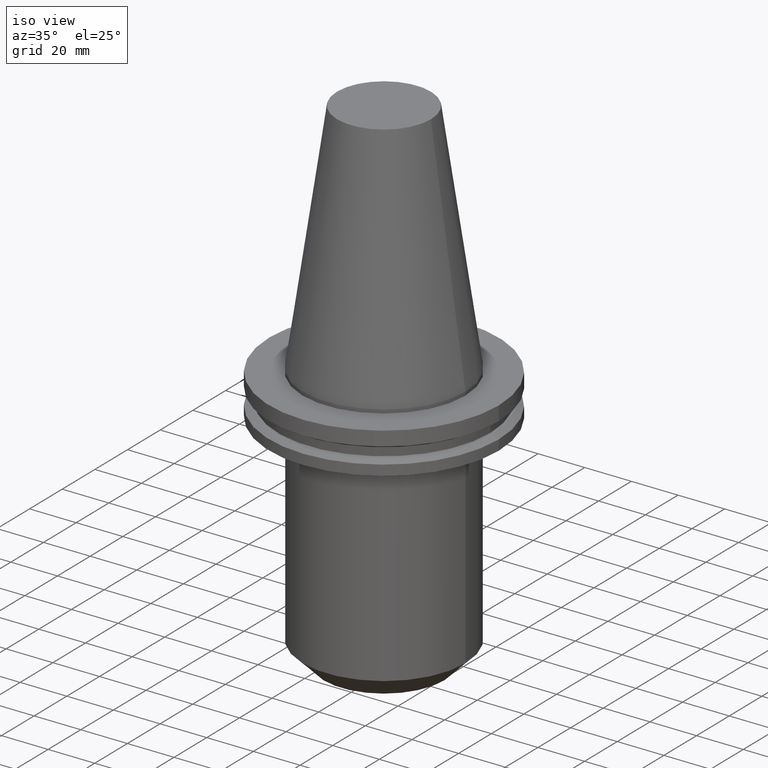
[diagram: clean part render]
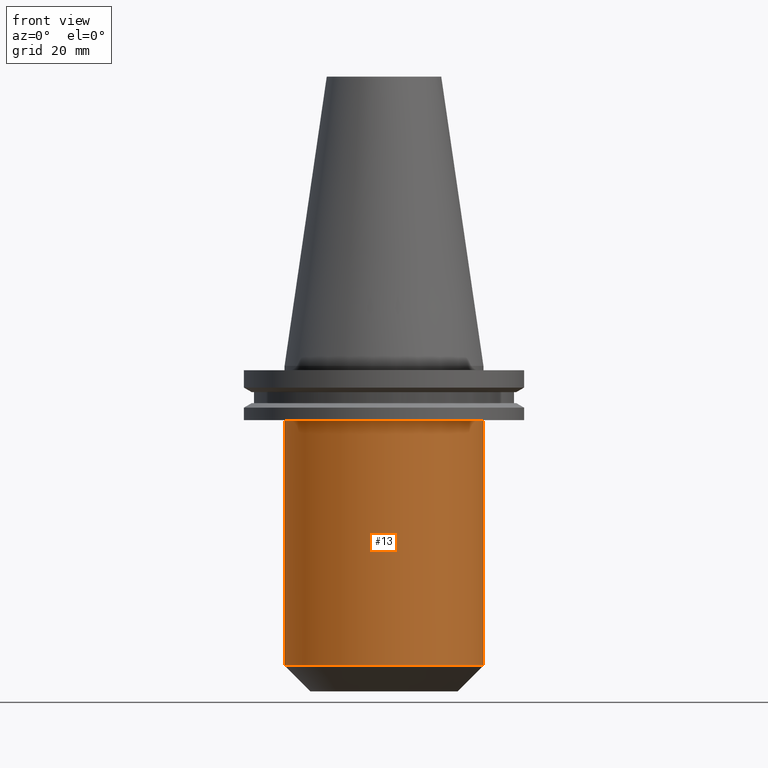
[diagram: tour spotlight — one face highlighted and labeled with its STEP entity id]
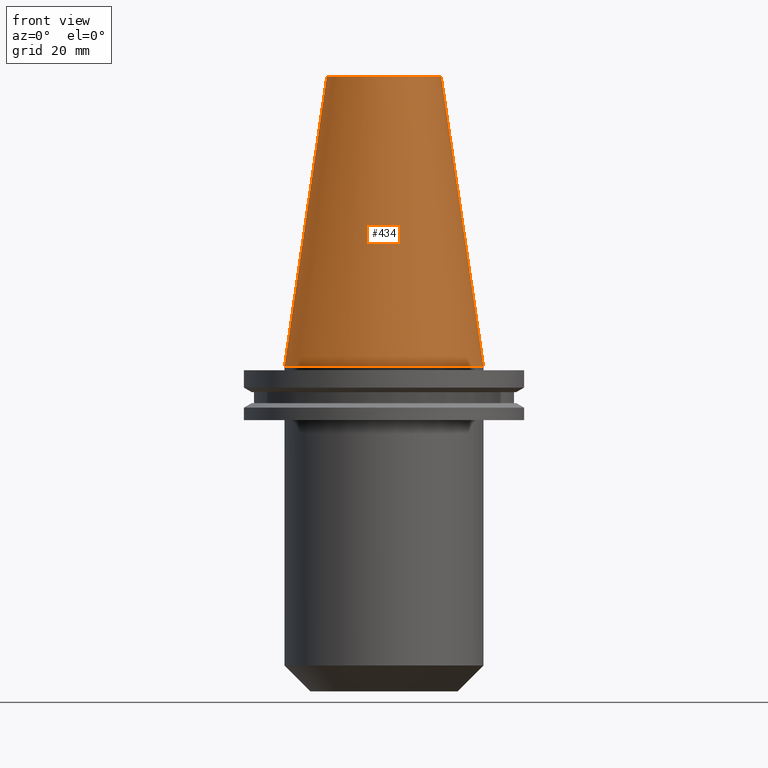
[diagram: tour spotlight — one face highlighted and labeled with its STEP entity id]
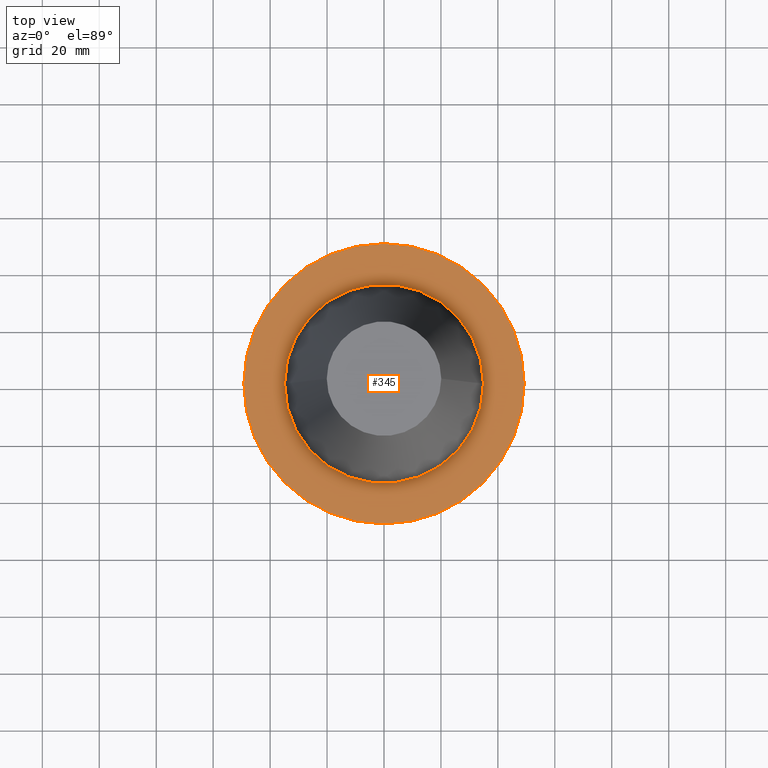
[diagram: tour spotlight — one face highlighted and labeled with its STEP entity id]
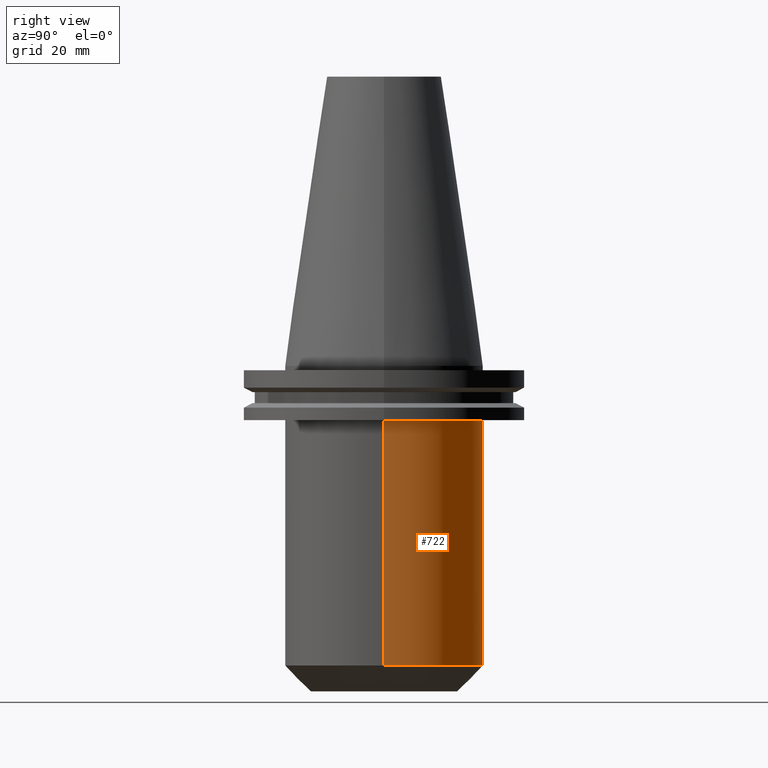
[diagram: tour spotlight — one face highlighted and labeled with its STEP entity id]
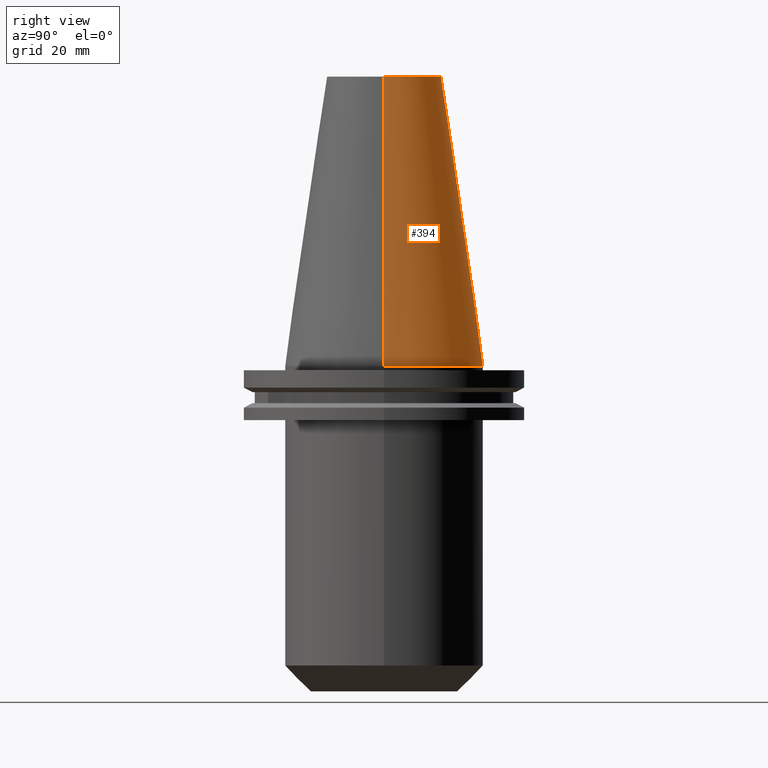
[diagram: tour spotlight — one face highlighted and labeled with its STEP entity id]
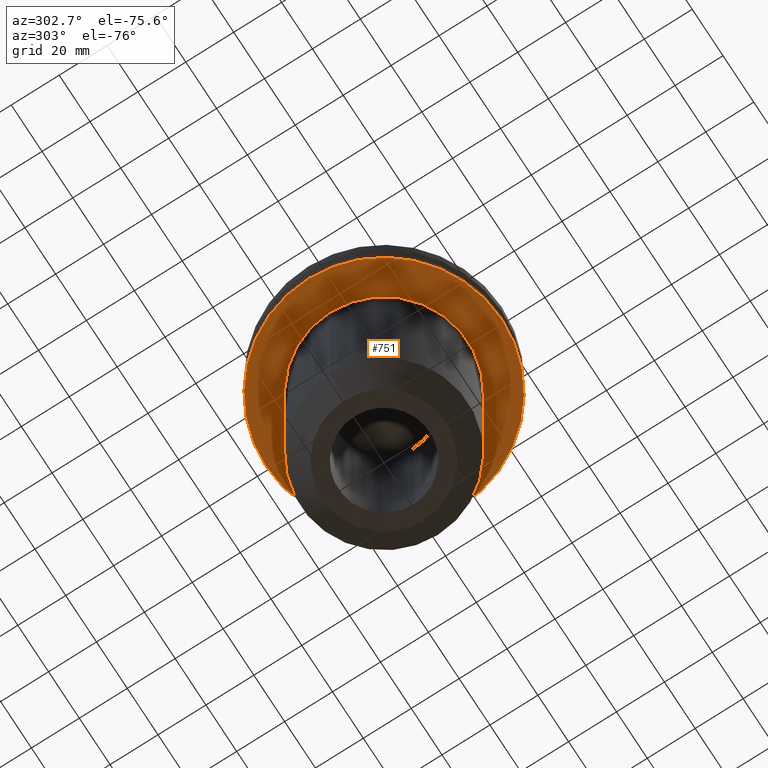
[diagram: tour spotlight — one face highlighted and labeled with its STEP entity id]
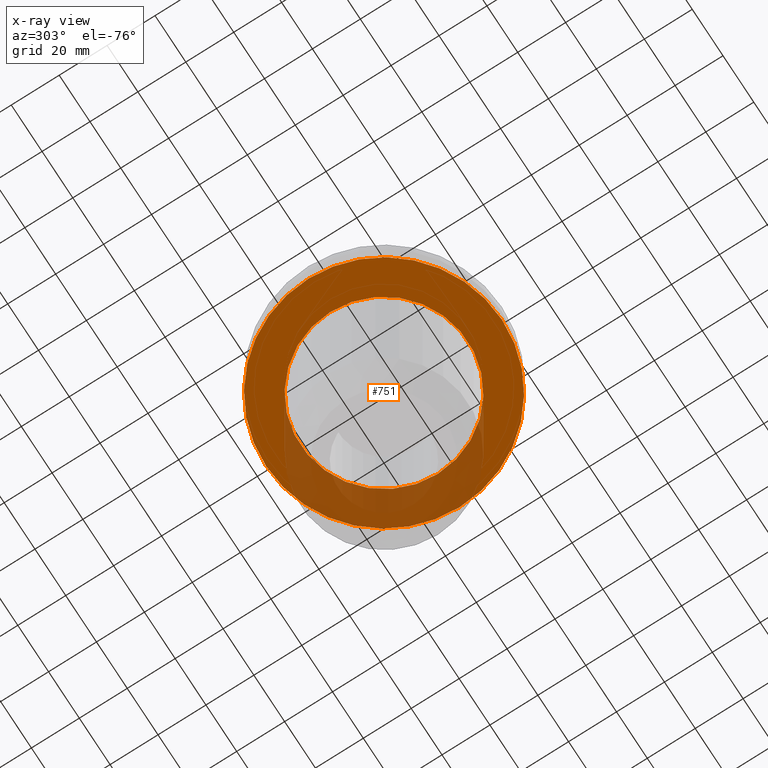
[diagram: x-ray of the same camera — body ghosted, this tour face saturated]
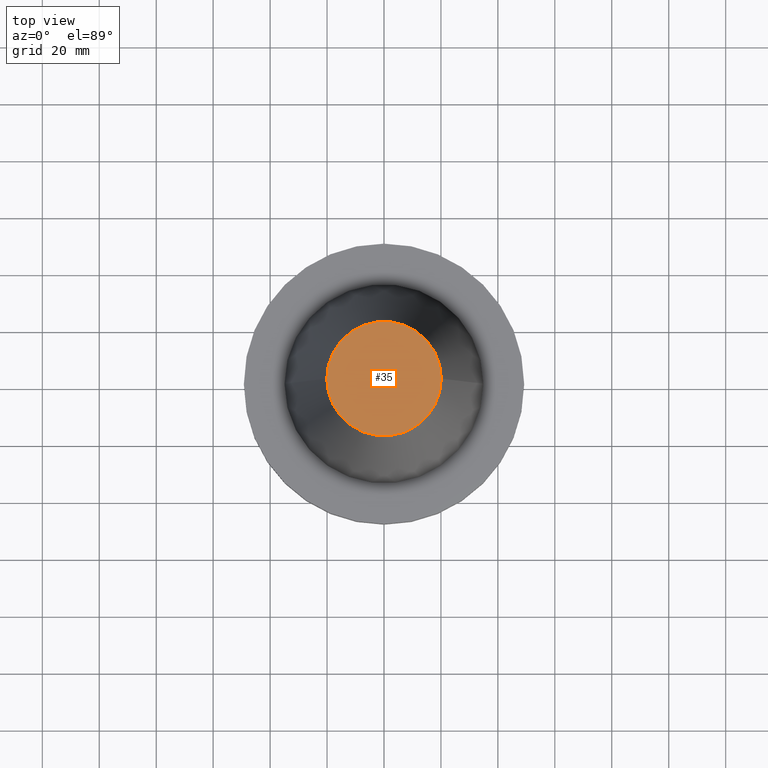
[diagram: tour spotlight — one face highlighted and labeled with its STEP entity id]
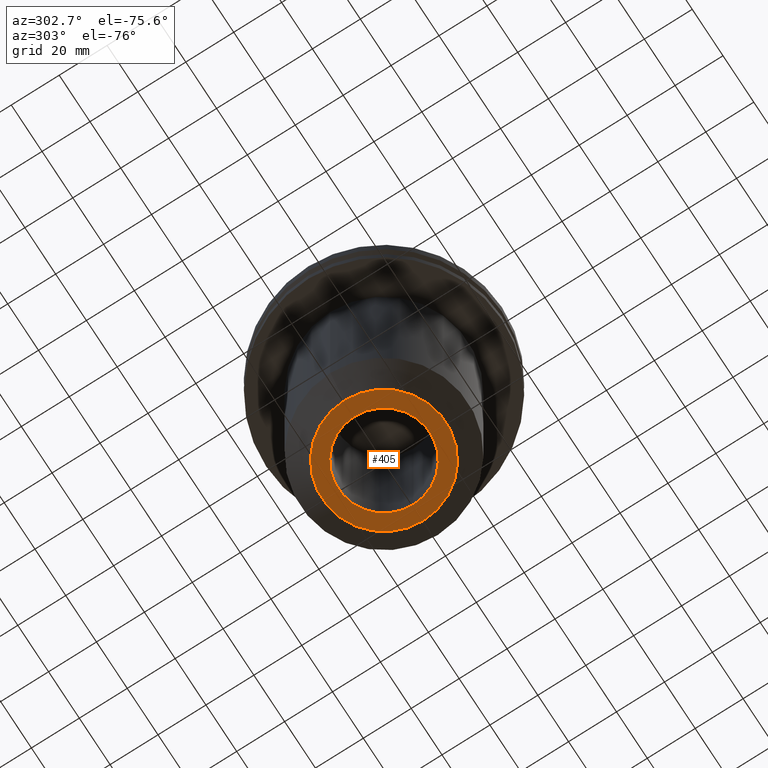
[diagram: tour spotlight — one face highlighted and labeled with its STEP entity id]
A machine part: a face-by-face anatomy tour. The part has 27 B-rep faces; the first image is the clean iso view, then the 8 largest visible faces are spotlighted one at a time (largest first), each with its STEP entity span.

Face 1 — front view, entity #13. In plain terms, the highlighted cylindrical surface (partial cylindrical patch) has radius 34.925 mm, axis along (-0, -0, 1).
Definition (entity closure, byte-faithful):
#13 = ADVANCED_FACE ( 'NONE', ( #207 ), #146, .T. ) ;
#54 = CARTESIAN_POINT ( 'NONE',  ( 34.92499999999999716, 0.000000000000000000, -19.04999999999999716 ) ) ;
#84 = ORIENTED_EDGE ( 'NONE', *, *, #343, .T. ) ;
#92 = DIRECTION ( 'NONE',  ( -0.000000000000000000, -0.000000000000000000, 1.000000000000000000 ) ) ;
#98 = ORIENTED_EDGE ( 'NONE', *, *, #572, .F. ) ;
#99 = LINE ( 'NONE', #396, #323 ) ;
#138 = ORIENTED_EDGE ( 'NONE', *, *, #267, .T. ) ;
#146 = CYLINDRICAL_SURFACE ( 'NONE', #496, 34.92499999999999716 ) ;
#156 = DIRECTION ( 'NONE',  ( -0.000000000000000000, -0.000000000000000000, 1.000000000000000000 ) ) ;
#172 = AXIS2_PLACEMENT_3D ( 'NONE', #677, #92, #696 ) ;
#207 = FACE_OUTER_BOUND ( 'NONE', #726, .T. ) ;
#231 = DIRECTION ( 'NONE',  ( 1.000000000000000000, 0.000000000000000000, 0.000000000000000000 ) ) ;
#262 = VERTEX_POINT ( 'NONE', #54 ) ;
#267 = EDGE_CURVE ( 'NONE', #542, #391, #759, .T. ) ;
#323 = VECTOR ( 'NONE', #156, 1000.000000000000000 ) ;
#343 = EDGE_CURVE ( 'NONE', #391, #262, #479, .T. ) ;
#356 = CARTESIAN_POINT ( 'NONE',  ( 34.92499999999999716, 0.000000000000000000, 101.5999999999999943 ) ) ;
#361 = CARTESIAN_POINT ( 'NONE',  ( 0.000000000000000000, 0.000000000000000000, -105.2000000000000028 ) ) ;
#376 = DIRECTION ( 'NONE',  ( 1.000000000000000000, 0.000000000000000000, 0.000000000000000000 ) ) ;
#391 = VERTEX_POINT ( 'NONE', #526 ) ;
#396 = CARTESIAN_POINT ( 'NONE',  ( -34.92499999999999716, 4.277078946022130887E-15, 101.5999999999999943 ) ) ;
#417 = DIRECTION ( 'NONE',  ( -0.000000000000000000, -0.000000000000000000, 1.000000000000000000 ) ) ;
#422 = VERTEX_POINT ( 'NONE', #485 ) ;
#441 = AXIS2_PLACEMENT_3D ( 'NONE', #361, #417, #231 ) ;
#479 = LINE ( 'NONE', #356, #669 ) ;
#485 = CARTESIAN_POINT ( 'NONE',  ( -34.92499999999999716, 4.277078946022130887E-15, -19.04999999999999716 ) ) ;
#496 = AXIS2_PLACEMENT_3D ( 'NONE', #665, #503, #376 ) ;
#503 = DIRECTION ( 'NONE',  ( -0.000000000000000000, -0.000000000000000000, 1.000000000000000000 ) ) ;
#525 = EDGE_CURVE ( 'NONE', #422, #262, #577, .T. ) ;
#526 = CARTESIAN_POINT ( 'NONE',  ( 34.92499999999998295, 0.000000000000000000, -105.2000000000000028 ) ) ;
#542 = VERTEX_POINT ( 'NONE', #687 ) ;
#572 = EDGE_CURVE ( 'NONE', #542, #422, #99, .T. ) ;
#577 = CIRCLE ( 'NONE', #172, 34.92499999999999716 ) ;
#595 = DIRECTION ( 'NONE',  ( -0.000000000000000000, -0.000000000000000000, 1.000000000000000000 ) ) ;
#665 = CARTESIAN_POINT ( 'NONE',  ( 0.000000000000000000, 0.000000000000000000, 101.5999999999999943 ) ) ;
#669 = VECTOR ( 'NONE', #595, 1000.000000000000000 ) ;
#672 = ORIENTED_EDGE ( 'NONE', *, *, #525, .F. ) ;
#677 = CARTESIAN_POINT ( 'NONE',  ( 0.000000000000000000, 0.000000000000000000, -19.04999999999999716 ) ) ;
#687 = CARTESIAN_POINT ( 'NONE',  ( -34.92499999999998295, 4.277078946022130098E-15, -105.2000000000000028 ) ) ;
#696 = DIRECTION ( 'NONE',  ( 1.000000000000000000, 0.000000000000000000, 0.000000000000000000 ) ) ;
#726 = EDGE_LOOP ( 'NONE', ( #98, #138, #84, #672 ) ) ;
#759 = CIRCLE ( 'NONE', #441, 34.92499999999998295 ) ;

Face 2 — front view, entity #434. In plain terms, the highlighted conical surface has half-angle 8.297 deg.
Definition (entity closure, byte-faithful):
#1 = CARTESIAN_POINT ( 'NONE',  ( 0.000000000000000000, 0.000000000000000000, 0.000000000000000000 ) ) ;
#52 = VECTOR ( 'NONE', #455, 999.9999999999998863 ) ;
#55 = VERTEX_POINT ( 'NONE', #380 ) ;
#62 = ORIENTED_EDGE ( 'NONE', *, *, #709, .F. ) ;
#72 = CARTESIAN_POINT ( 'NONE',  ( 0.000000000000000000, 0.000000000000000000, 0.000000000000000000 ) ) ;
#124 = DIRECTION ( 'NONE',  ( 1.000000000000000000, 0.000000000000000000, 0.000000000000000000 ) ) ;
#148 = AXIS2_PLACEMENT_3D ( 'NONE', #72, #554, #741 ) ;
#164 = CARTESIAN_POINT ( 'NONE',  ( 34.92499999999999005, 4.277078946022130098E-15, 0.000000000000000000 ) ) ;
#197 = CIRCLE ( 'NONE', #543, 20.10819343178871321 ) ;
#224 = VECTOR ( 'NONE', #260, 999.9999999999998863 ) ;
#260 = DIRECTION ( 'NONE',  ( -0.1443082272672999988, 0.000000000000000000, -0.9895327864921755756 ) ) ;
#322 = LINE ( 'NONE', #436, #224 ) ;
#355 = EDGE_CURVE ( 'NONE', #774, #563, #743, .T. ) ;
#375 = FACE_OUTER_BOUND ( 'NONE', #626, .T. ) ;
#380 = CARTESIAN_POINT ( 'NONE',  ( -20.10819343178871321, 0.000000000000000000, 101.5999999999999801 ) ) ;
#418 = VERTEX_POINT ( 'NONE', #673 ) ;
#428 = DIRECTION ( 'NONE',  ( -0.000000000000000000, -0.000000000000000000, 1.000000000000000000 ) ) ;
#434 = ADVANCED_FACE ( 'NONE', ( #375 ), #603, .T. ) ;
#436 = CARTESIAN_POINT ( 'NONE',  ( -34.92499999999999005, 0.000000000000000000, 0.000000000000000000 ) ) ;
#455 = DIRECTION ( 'NONE',  ( 0.1443082272672999988, 1.767266086135277066E-17, -0.9895327864921755756 ) ) ;
#477 = ORIENTED_EDGE ( 'NONE', *, *, #494, .F. ) ;
#484 = EDGE_CURVE ( 'NONE', #55, #774, #322, .T. ) ;
#489 = ORIENTED_EDGE ( 'NONE', *, *, #484, .T. ) ;
#494 = EDGE_CURVE ( 'NONE', #55, #418, #197, .T. ) ;
#515 = LINE ( 'NONE', #757, #52 ) ;
#540 = CARTESIAN_POINT ( 'NONE',  ( 0.000000000000000000, 0.000000000000000000, 101.5999999999999801 ) ) ;
#543 = AXIS2_PLACEMENT_3D ( 'NONE', #540, #428, #668 ) ;
#554 = DIRECTION ( 'NONE',  ( 0.000000000000000000, 0.000000000000000000, -1.000000000000000000 ) ) ;
#563 = VERTEX_POINT ( 'NONE', #164 ) ;
#603 = CONICAL_SURFACE ( 'NONE', #148, 34.92499999999999005, 0.1448138465474119452 ) ;
#626 = EDGE_LOOP ( 'NONE', ( #62, #477, #489, #648 ) ) ;
#648 = ORIENTED_EDGE ( 'NONE', *, *, #355, .T. ) ;
#668 = DIRECTION ( 'NONE',  ( 1.000000000000000000, 0.000000000000000000, 0.000000000000000000 ) ) ;
#673 = CARTESIAN_POINT ( 'NONE',  ( 20.10819343178871321, 3.369811209154858606E-15, 101.5999999999999801 ) ) ;
#709 = EDGE_CURVE ( 'NONE', #418, #563, #515, .T. ) ;
#741 = DIRECTION ( 'NONE',  ( -1.000000000000000000, 0.000000000000000000, 0.000000000000000000 ) ) ;
#743 = CIRCLE ( 'NONE', #756, 34.92499999999999005 ) ;
#756 = AXIS2_PLACEMENT_3D ( 'NONE', #1, #766, #124 ) ;
#757 = CARTESIAN_POINT ( 'NONE',  ( 34.92499999999999005, 4.277078946022130098E-15, 0.000000000000000000 ) ) ;
#766 = DIRECTION ( 'NONE',  ( -0.000000000000000000, -0.000000000000000000, 1.000000000000000000 ) ) ;
#774 = VERTEX_POINT ( 'NONE', #775 ) ;
#775 = CARTESIAN_POINT ( 'NONE',  ( -34.92499999999999005, 0.000000000000000000, 0.000000000000000000 ) ) ;

Face 3 — top view, entity #345. In plain terms, the highlighted planar face has unit normal (0, 0, -1).
Definition (entity closure, byte-faithful):
#15 = EDGE_LOOP ( 'NONE', ( #613, #34 ) ) ;
#34 = ORIENTED_EDGE ( 'NONE', *, *, #48, .T. ) ;
#36 = CARTESIAN_POINT ( 'NONE',  ( 34.92499999999999005, 0.000000000000000000, -1.499999999999987566 ) ) ;
#38 = CIRCLE ( 'NONE', #592, 34.92499999999999005 ) ;
#44 = DIRECTION ( 'NONE',  ( -0.000000000000000000, -0.000000000000000000, 1.000000000000000000 ) ) ;
#45 = AXIS2_PLACEMENT_3D ( 'NONE', #352, #298, #349 ) ;
#48 = EDGE_CURVE ( 'NONE', #362, #555, #697, .T. ) ;
#114 = EDGE_CURVE ( 'NONE', #433, #639, #38, .T. ) ;
#133 = CARTESIAN_POINT ( 'NONE',  ( 0.000000000000000000, 0.000000000000000000, -1.499999999999987566 ) ) ;
#140 = CARTESIAN_POINT ( 'NONE',  ( -34.92499999999999005, 4.277078946022130098E-15, -1.499999999999987566 ) ) ;
#168 = AXIS2_PLACEMENT_3D ( 'NONE', #571, #44, #279 ) ;
#193 = EDGE_CURVE ( 'NONE', #639, #433, #588, .T. ) ;
#215 = CARTESIAN_POINT ( 'NONE',  ( 0.000000000000000000, 0.000000000000000000, -1.499999999999987566 ) ) ;
#279 = DIRECTION ( 'NONE',  ( 1.000000000000000000, 0.000000000000000000, 0.000000000000000000 ) ) ;
#290 = CARTESIAN_POINT ( 'NONE',  ( -49.21499999999999631, 6.027099222003697826E-15, -1.499999999999987566 ) ) ;
#298 = DIRECTION ( 'NONE',  ( 0.000000000000000000, 0.000000000000000000, -1.000000000000000000 ) ) ;
#345 = ADVANCED_FACE ( 'NONE', ( #410, #583 ), #523, .F. ) ;
#349 = DIRECTION ( 'NONE',  ( -1.000000000000000000, 0.000000000000000000, -0.000000000000000000 ) ) ;
#352 = CARTESIAN_POINT ( 'NONE',  ( 0.000000000000000000, 49.21499999999999631, -1.499999999999992895 ) ) ;
#362 = VERTEX_POINT ( 'NONE', #290 ) ;
#404 = CARTESIAN_POINT ( 'NONE',  ( 0.000000000000000000, 0.000000000000000000, -1.499999999999987566 ) ) ;
#410 = FACE_BOUND ( 'NONE', #535, .T. ) ;
#414 = ORIENTED_EDGE ( 'NONE', *, *, #114, .F. ) ;
#433 = VERTEX_POINT ( 'NONE', #140 ) ;
#437 = DIRECTION ( 'NONE',  ( -0.000000000000000000, -0.000000000000000000, 1.000000000000000000 ) ) ;
#445 = AXIS2_PLACEMENT_3D ( 'NONE', #215, #761, #570 ) ;
#512 = DIRECTION ( 'NONE',  ( -0.000000000000000000, -0.000000000000000000, 1.000000000000000000 ) ) ;
#523 = PLANE ( 'NONE',  #45 ) ;
#532 = AXIS2_PLACEMENT_3D ( 'NONE', #133, #437, #678 ) ;
#535 = EDGE_LOOP ( 'NONE', ( #649, #414 ) ) ;
#555 = VERTEX_POINT ( 'NONE', #744 ) ;
#570 = DIRECTION ( 'NONE',  ( 1.000000000000000000, 0.000000000000000000, 0.000000000000000000 ) ) ;
#571 = CARTESIAN_POINT ( 'NONE',  ( 0.000000000000000000, 0.000000000000000000, -1.499999999999987566 ) ) ;
#583 = FACE_OUTER_BOUND ( 'NONE', #15, .T. ) ;
#588 = CIRCLE ( 'NONE', #168, 34.92499999999999005 ) ;
#592 = AXIS2_PLACEMENT_3D ( 'NONE', #404, #512, #688 ) ;
#613 = ORIENTED_EDGE ( 'NONE', *, *, #682, .T. ) ;
#639 = VERTEX_POINT ( 'NONE', #36 ) ;
#649 = ORIENTED_EDGE ( 'NONE', *, *, #193, .F. ) ;
#678 = DIRECTION ( 'NONE',  ( 1.000000000000000000, 0.000000000000000000, 0.000000000000000000 ) ) ;
#682 = EDGE_CURVE ( 'NONE', #555, #362, #720, .T. ) ;
#688 = DIRECTION ( 'NONE',  ( 1.000000000000000000, 0.000000000000000000, 0.000000000000000000 ) ) ;
#697 = CIRCLE ( 'NONE', #532, 49.21499999999999631 ) ;
#720 = CIRCLE ( 'NONE', #445, 49.21499999999999631 ) ;
#744 = CARTESIAN_POINT ( 'NONE',  ( 49.21499999999999631, 0.000000000000000000, -1.499999999999987566 ) ) ;
#761 = DIRECTION ( 'NONE',  ( -0.000000000000000000, -0.000000000000000000, 1.000000000000000000 ) ) ;

Face 4 — right view, entity #722. In plain terms, the highlighted cylindrical surface (partial cylindrical patch) has radius 34.925 mm, axis along (-0, -0, 1).
Definition (entity closure, byte-faithful):
#7 = EDGE_CURVE ( 'NONE', #391, #542, #632, .T. ) ;
#33 = DIRECTION ( 'NONE',  ( 1.000000000000000000, 0.000000000000000000, 0.000000000000000000 ) ) ;
#39 = AXIS2_PLACEMENT_3D ( 'NONE', #524, #465, #701 ) ;
#54 = CARTESIAN_POINT ( 'NONE',  ( 34.92499999999999716, 0.000000000000000000, -19.04999999999999716 ) ) ;
#99 = LINE ( 'NONE', #396, #323 ) ;
#100 = DIRECTION ( 'NONE',  ( 1.000000000000000000, 0.000000000000000000, 0.000000000000000000 ) ) ;
#113 = ORIENTED_EDGE ( 'NONE', *, *, #7, .T. ) ;
#131 = EDGE_CURVE ( 'NONE', #262, #422, #731, .T. ) ;
#156 = DIRECTION ( 'NONE',  ( -0.000000000000000000, -0.000000000000000000, 1.000000000000000000 ) ) ;
#171 = CYLINDRICAL_SURFACE ( 'NONE', #39, 34.92499999999999716 ) ;
#199 = ORIENTED_EDGE ( 'NONE', *, *, #131, .F. ) ;
#208 = ORIENTED_EDGE ( 'NONE', *, *, #343, .F. ) ;
#262 = VERTEX_POINT ( 'NONE', #54 ) ;
#323 = VECTOR ( 'NONE', #156, 1000.000000000000000 ) ;
#332 = CARTESIAN_POINT ( 'NONE',  ( 0.000000000000000000, 0.000000000000000000, -19.04999999999999716 ) ) ;
#343 = EDGE_CURVE ( 'NONE', #391, #262, #479, .T. ) ;
#348 = FACE_OUTER_BOUND ( 'NONE', #377, .T. ) ;
#356 = CARTESIAN_POINT ( 'NONE',  ( 34.92499999999999716, 0.000000000000000000, 101.5999999999999943 ) ) ;
#377 = EDGE_LOOP ( 'NONE', ( #113, #725, #199, #208 ) ) ;
#391 = VERTEX_POINT ( 'NONE', #526 ) ;
#396 = CARTESIAN_POINT ( 'NONE',  ( -34.92499999999999716, 4.277078946022130887E-15, 101.5999999999999943 ) ) ;
#422 = VERTEX_POINT ( 'NONE', #485 ) ;
#465 = DIRECTION ( 'NONE',  ( -0.000000000000000000, -0.000000000000000000, 1.000000000000000000 ) ) ;
#479 = LINE ( 'NONE', #356, #669 ) ;
#481 = AXIS2_PLACEMENT_3D ( 'NONE', #332, #750, #100 ) ;
#485 = CARTESIAN_POINT ( 'NONE',  ( -34.92499999999999716, 4.277078946022130887E-15, -19.04999999999999716 ) ) ;
#498 = DIRECTION ( 'NONE',  ( -0.000000000000000000, -0.000000000000000000, 1.000000000000000000 ) ) ;
#524 = CARTESIAN_POINT ( 'NONE',  ( 0.000000000000000000, 0.000000000000000000, 101.5999999999999943 ) ) ;
#526 = CARTESIAN_POINT ( 'NONE',  ( 34.92499999999998295, 0.000000000000000000, -105.2000000000000028 ) ) ;
#542 = VERTEX_POINT ( 'NONE', #687 ) ;
#572 = EDGE_CURVE ( 'NONE', #542, #422, #99, .T. ) ;
#582 = AXIS2_PLACEMENT_3D ( 'NONE', #675, #498, #33 ) ;
#595 = DIRECTION ( 'NONE',  ( -0.000000000000000000, -0.000000000000000000, 1.000000000000000000 ) ) ;
#632 = CIRCLE ( 'NONE', #582, 34.92499999999998295 ) ;
#669 = VECTOR ( 'NONE', #595, 1000.000000000000000 ) ;
#675 = CARTESIAN_POINT ( 'NONE',  ( 0.000000000000000000, 0.000000000000000000, -105.2000000000000028 ) ) ;
#687 = CARTESIAN_POINT ( 'NONE',  ( -34.92499999999998295, 4.277078946022130098E-15, -105.2000000000000028 ) ) ;
#701 = DIRECTION ( 'NONE',  ( 1.000000000000000000, 0.000000000000000000, 0.000000000000000000 ) ) ;
#722 = ADVANCED_FACE ( 'NONE', ( #348 ), #171, .T. ) ;
#725 = ORIENTED_EDGE ( 'NONE', *, *, #572, .T. ) ;
#731 = CIRCLE ( 'NONE', #481, 34.92499999999999716 ) ;
#750 = DIRECTION ( 'NONE',  ( -0.000000000000000000, -0.000000000000000000, 1.000000000000000000 ) ) ;

Face 5 — right view, entity #394. In plain terms, the highlighted conical surface has half-angle 8.297 deg.
Definition (entity closure, byte-faithful):
#52 = VECTOR ( 'NONE', #455, 999.9999999999998863 ) ;
#53 = DIRECTION ( 'NONE',  ( -0.000000000000000000, -0.000000000000000000, 1.000000000000000000 ) ) ;
#55 = VERTEX_POINT ( 'NONE', #380 ) ;
#66 = CARTESIAN_POINT ( 'NONE',  ( 0.000000000000000000, 0.000000000000000000, 0.000000000000000000 ) ) ;
#80 = ORIENTED_EDGE ( 'NONE', *, *, #253, .T. ) ;
#103 = CARTESIAN_POINT ( 'NONE',  ( 0.000000000000000000, 0.000000000000000000, 101.5999999999999801 ) ) ;
#116 = DIRECTION ( 'NONE',  ( 1.000000000000000000, 0.000000000000000000, 0.000000000000000000 ) ) ;
#127 = EDGE_CURVE ( 'NONE', #418, #55, #567, .T. ) ;
#164 = CARTESIAN_POINT ( 'NONE',  ( 34.92499999999999005, 4.277078946022130098E-15, 0.000000000000000000 ) ) ;
#222 = CIRCLE ( 'NONE', #305, 34.92499999999999005 ) ;
#224 = VECTOR ( 'NONE', #260, 999.9999999999998863 ) ;
#243 = AXIS2_PLACEMENT_3D ( 'NONE', #558, #431, #487 ) ;
#253 = EDGE_CURVE ( 'NONE', #563, #774, #222, .T. ) ;
#255 = EDGE_LOOP ( 'NONE', ( #326, #658, #80, #730 ) ) ;
#260 = DIRECTION ( 'NONE',  ( -0.1443082272672999988, 0.000000000000000000, -0.9895327864921755756 ) ) ;
#305 = AXIS2_PLACEMENT_3D ( 'NONE', #66, #646, #116 ) ;
#322 = LINE ( 'NONE', #436, #224 ) ;
#326 = ORIENTED_EDGE ( 'NONE', *, *, #127, .F. ) ;
#380 = CARTESIAN_POINT ( 'NONE',  ( -20.10819343178871321, 0.000000000000000000, 101.5999999999999801 ) ) ;
#394 = ADVANCED_FACE ( 'NONE', ( #768 ), #712, .T. ) ;
#418 = VERTEX_POINT ( 'NONE', #673 ) ;
#431 = DIRECTION ( 'NONE',  ( 0.000000000000000000, 0.000000000000000000, -1.000000000000000000 ) ) ;
#436 = CARTESIAN_POINT ( 'NONE',  ( -34.92499999999999005, 0.000000000000000000, 0.000000000000000000 ) ) ;
#455 = DIRECTION ( 'NONE',  ( 0.1443082272672999988, 1.767266086135277066E-17, -0.9895327864921755756 ) ) ;
#484 = EDGE_CURVE ( 'NONE', #55, #774, #322, .T. ) ;
#487 = DIRECTION ( 'NONE',  ( -1.000000000000000000, 0.000000000000000000, 0.000000000000000000 ) ) ;
#515 = LINE ( 'NONE', #757, #52 ) ;
#558 = CARTESIAN_POINT ( 'NONE',  ( 0.000000000000000000, 0.000000000000000000, 0.000000000000000000 ) ) ;
#563 = VERTEX_POINT ( 'NONE', #164 ) ;
#567 = CIRCLE ( 'NONE', #760, 20.10819343178871321 ) ;
#625 = DIRECTION ( 'NONE',  ( 1.000000000000000000, 0.000000000000000000, 0.000000000000000000 ) ) ;
#646 = DIRECTION ( 'NONE',  ( -0.000000000000000000, -0.000000000000000000, 1.000000000000000000 ) ) ;
#658 = ORIENTED_EDGE ( 'NONE', *, *, #709, .T. ) ;
#673 = CARTESIAN_POINT ( 'NONE',  ( 20.10819343178871321, 3.369811209154858606E-15, 101.5999999999999801 ) ) ;
#709 = EDGE_CURVE ( 'NONE', #418, #563, #515, .T. ) ;
#712 = CONICAL_SURFACE ( 'NONE', #243, 34.92499999999999005, 0.1448138465474119452 ) ;
#730 = ORIENTED_EDGE ( 'NONE', *, *, #484, .F. ) ;
#757 = CARTESIAN_POINT ( 'NONE',  ( 34.92499999999999005, 4.277078946022130098E-15, 0.000000000000000000 ) ) ;
#760 = AXIS2_PLACEMENT_3D ( 'NONE', #103, #53, #625 ) ;
#768 = FACE_OUTER_BOUND ( 'NONE', #255, .T. ) ;
#774 = VERTEX_POINT ( 'NONE', #775 ) ;
#775 = CARTESIAN_POINT ( 'NONE',  ( -34.92499999999999005, 0.000000000000000000, 0.000000000000000000 ) ) ;

Face 6 — auxiliary view, entity #751. An x-ray twin of the same camera follows (body ghosted, this face saturated) — the face is partly hidden behind the body. In plain terms, the highlighted planar face has unit normal (0, -0, 1).
Definition (entity closure, byte-faithful):
#5 = DIRECTION ( 'NONE',  ( 1.000000000000000000, 0.000000000000000000, 0.000000000000000000 ) ) ;
#6 = ORIENTED_EDGE ( 'NONE', *, *, #525, .T. ) ;
#51 = CARTESIAN_POINT ( 'NONE',  ( 0.000000000000000000, 49.21499999999998920, -19.04999999999999716 ) ) ;
#54 = CARTESIAN_POINT ( 'NONE',  ( 34.92499999999999716, 0.000000000000000000, -19.04999999999999716 ) ) ;
#60 = DIRECTION ( 'NONE',  ( -0.000000000000000000, -0.000000000000000000, 1.000000000000000000 ) ) ;
#75 = AXIS2_PLACEMENT_3D ( 'NONE', #51, #475, #533 ) ;
#81 = CARTESIAN_POINT ( 'NONE',  ( -49.21499999999998920, 6.027099222003697037E-15, -19.04999999999999716 ) ) ;
#92 = DIRECTION ( 'NONE',  ( -0.000000000000000000, -0.000000000000000000, 1.000000000000000000 ) ) ;
#100 = DIRECTION ( 'NONE',  ( 1.000000000000000000, 0.000000000000000000, 0.000000000000000000 ) ) ;
#125 = ORIENTED_EDGE ( 'NONE', *, *, #131, .T. ) ;
#131 = EDGE_CURVE ( 'NONE', #262, #422, #731, .T. ) ;
#167 = DIRECTION ( 'NONE',  ( -0.000000000000000000, -0.000000000000000000, 1.000000000000000000 ) ) ;
#172 = AXIS2_PLACEMENT_3D ( 'NONE', #677, #92, #696 ) ;
#177 = EDGE_LOOP ( 'NONE', ( #125, #6 ) ) ;
#229 = AXIS2_PLACEMENT_3D ( 'NONE', #421, #60, #5 ) ;
#242 = FACE_BOUND ( 'NONE', #177, .T. ) ;
#257 = CARTESIAN_POINT ( 'NONE',  ( 49.21499999999998920, 0.000000000000000000, -19.04999999999999716 ) ) ;
#261 = EDGE_LOOP ( 'NONE', ( #499, #353 ) ) ;
#262 = VERTEX_POINT ( 'NONE', #54 ) ;
#271 = CIRCLE ( 'NONE', #704, 49.21499999999998920 ) ;
#293 = CARTESIAN_POINT ( 'NONE',  ( 0.000000000000000000, 0.000000000000000000, -19.04999999999999716 ) ) ;
#325 = EDGE_CURVE ( 'NONE', #440, #509, #271, .T. ) ;
#332 = CARTESIAN_POINT ( 'NONE',  ( 0.000000000000000000, 0.000000000000000000, -19.04999999999999716 ) ) ;
#353 = ORIENTED_EDGE ( 'NONE', *, *, #366, .F. ) ;
#366 = EDGE_CURVE ( 'NONE', #509, #440, #491, .T. ) ;
#409 = FACE_OUTER_BOUND ( 'NONE', #261, .T. ) ;
#421 = CARTESIAN_POINT ( 'NONE',  ( 0.000000000000000000, 0.000000000000000000, -19.04999999999999716 ) ) ;
#422 = VERTEX_POINT ( 'NONE', #485 ) ;
#440 = VERTEX_POINT ( 'NONE', #257 ) ;
#472 = DIRECTION ( 'NONE',  ( 1.000000000000000000, 0.000000000000000000, 0.000000000000000000 ) ) ;
#475 = DIRECTION ( 'NONE',  ( 0.000000000000000000, -0.000000000000000000, 1.000000000000000000 ) ) ;
#481 = AXIS2_PLACEMENT_3D ( 'NONE', #332, #750, #100 ) ;
#485 = CARTESIAN_POINT ( 'NONE',  ( -34.92499999999999716, 4.277078946022130887E-15, -19.04999999999999716 ) ) ;
#491 = CIRCLE ( 'NONE', #229, 49.21499999999998920 ) ;
#499 = ORIENTED_EDGE ( 'NONE', *, *, #325, .F. ) ;
#509 = VERTEX_POINT ( 'NONE', #81 ) ;
#525 = EDGE_CURVE ( 'NONE', #422, #262, #577, .T. ) ;
#533 = DIRECTION ( 'NONE',  ( 1.000000000000000000, 0.000000000000000000, 0.000000000000000000 ) ) ;
#577 = CIRCLE ( 'NONE', #172, 34.92499999999999716 ) ;
#594 = PLANE ( 'NONE',  #75 ) ;
#677 = CARTESIAN_POINT ( 'NONE',  ( 0.000000000000000000, 0.000000000000000000, -19.04999999999999716 ) ) ;
#696 = DIRECTION ( 'NONE',  ( 1.000000000000000000, 0.000000000000000000, 0.000000000000000000 ) ) ;
#704 = AXIS2_PLACEMENT_3D ( 'NONE', #293, #167, #472 ) ;
#731 = CIRCLE ( 'NONE', #481, 34.92499999999999716 ) ;
#750 = DIRECTION ( 'NONE',  ( -0.000000000000000000, -0.000000000000000000, 1.000000000000000000 ) ) ;
#751 = ADVANCED_FACE ( 'NONE', ( #409, #242 ), #594, .F. ) ;

Face 7 — top view, entity #35. In plain terms, the highlighted planar face has unit normal (0, 0, -1).
Definition (entity closure, byte-faithful):
#35 = ADVANCED_FACE ( 'NONE', ( #202 ), #318, .F. ) ;
#53 = DIRECTION ( 'NONE',  ( -0.000000000000000000, -0.000000000000000000, 1.000000000000000000 ) ) ;
#55 = VERTEX_POINT ( 'NONE', #380 ) ;
#74 = DIRECTION ( 'NONE',  ( 0.000000000000000000, 0.000000000000000000, -1.000000000000000000 ) ) ;
#103 = CARTESIAN_POINT ( 'NONE',  ( 0.000000000000000000, 0.000000000000000000, 101.5999999999999801 ) ) ;
#127 = EDGE_CURVE ( 'NONE', #418, #55, #567, .T. ) ;
#197 = CIRCLE ( 'NONE', #543, 20.10819343178871321 ) ;
#202 = FACE_OUTER_BOUND ( 'NONE', #333, .T. ) ;
#236 = AXIS2_PLACEMENT_3D ( 'NONE', #488, #74, #684 ) ;
#318 = PLANE ( 'NONE',  #236 ) ;
#333 = EDGE_LOOP ( 'NONE', ( #591, #385 ) ) ;
#380 = CARTESIAN_POINT ( 'NONE',  ( -20.10819343178871321, 0.000000000000000000, 101.5999999999999801 ) ) ;
#385 = ORIENTED_EDGE ( 'NONE', *, *, #127, .T. ) ;
#418 = VERTEX_POINT ( 'NONE', #673 ) ;
#428 = DIRECTION ( 'NONE',  ( -0.000000000000000000, -0.000000000000000000, 1.000000000000000000 ) ) ;
#488 = CARTESIAN_POINT ( 'NONE',  ( 0.000000000000000000, 20.10819343178871321, 101.5999999999999943 ) ) ;
#494 = EDGE_CURVE ( 'NONE', #55, #418, #197, .T. ) ;
#540 = CARTESIAN_POINT ( 'NONE',  ( 0.000000000000000000, 0.000000000000000000, 101.5999999999999801 ) ) ;
#543 = AXIS2_PLACEMENT_3D ( 'NONE', #540, #428, #668 ) ;
#567 = CIRCLE ( 'NONE', #760, 20.10819343178871321 ) ;
#591 = ORIENTED_EDGE ( 'NONE', *, *, #494, .T. ) ;
#625 = DIRECTION ( 'NONE',  ( 1.000000000000000000, 0.000000000000000000, 0.000000000000000000 ) ) ;
#668 = DIRECTION ( 'NONE',  ( 1.000000000000000000, 0.000000000000000000, 0.000000000000000000 ) ) ;
#673 = CARTESIAN_POINT ( 'NONE',  ( 20.10819343178871321, 3.369811209154858606E-15, 101.5999999999999801 ) ) ;
#684 = DIRECTION ( 'NONE',  ( -1.000000000000000000, 0.000000000000000000, -0.000000000000000000 ) ) ;
#760 = AXIS2_PLACEMENT_3D ( 'NONE', #103, #53, #625 ) ;

Face 8 — auxiliary view, entity #405. In plain terms, the highlighted planar face has unit normal (0, -0, 1).
Definition (entity closure, byte-faithful):
#18 = PLANE ( 'NONE',  #142 ) ;
#57 = CARTESIAN_POINT ( 'NONE',  ( -25.82499999999994955, 3.719864652410080914E-15, -114.2999999999999972 ) ) ;
#58 = VERTEX_POINT ( 'NONE', #602 ) ;
#128 = ORIENTED_EDGE ( 'NONE', *, *, #211, .T. ) ;
#139 = EDGE_CURVE ( 'NONE', #679, #274, #346, .T. ) ;
#142 = AXIS2_PLACEMENT_3D ( 'NONE', #382, #729, #502 ) ;
#158 = DIRECTION ( 'NONE',  ( -0.000000000000000000, -0.000000000000000000, 1.000000000000000000 ) ) ;
#161 = EDGE_CURVE ( 'NONE', #274, #679, #728, .T. ) ;
#163 = DIRECTION ( 'NONE',  ( -0.000000000000000000, -0.000000000000000000, 1.000000000000000000 ) ) ;
#211 = EDGE_CURVE ( 'NONE', #58, #612, #653, .T. ) ;
#217 = CARTESIAN_POINT ( 'NONE',  ( 19.04999999999998650, 0.000000000000000000, -114.2999999999999972 ) ) ;
#225 = CARTESIAN_POINT ( 'NONE',  ( 0.000000000000000000, 0.000000000000000000, -114.2999999999999972 ) ) ;
#226 = DIRECTION ( 'NONE',  ( -0.000000000000000000, -0.000000000000000000, 1.000000000000000000 ) ) ;
#250 = FACE_OUTER_BOUND ( 'NONE', #747, .T. ) ;
#273 = DIRECTION ( 'NONE',  ( 1.000000000000000000, 0.000000000000000000, 0.000000000000000000 ) ) ;
#274 = VERTEX_POINT ( 'NONE', #57 ) ;
#276 = DIRECTION ( 'NONE',  ( 1.000000000000000000, 0.000000000000000000, 0.000000000000000000 ) ) ;
#314 = FACE_BOUND ( 'NONE', #373, .T. ) ;
#336 = CARTESIAN_POINT ( 'NONE',  ( 0.000000000000000000, 0.000000000000000000, -114.2999999999999972 ) ) ;
#346 = CIRCLE ( 'NONE', #447, 25.82499999999994955 ) ;
#357 = AXIS2_PLACEMENT_3D ( 'NONE', #698, #226, #273 ) ;
#373 = EDGE_LOOP ( 'NONE', ( #389, #128 ) ) ;
#382 = CARTESIAN_POINT ( 'NONE',  ( 0.000000000000000000, 19.04999999999998650, -114.2999999999999972 ) ) ;
#389 = ORIENTED_EDGE ( 'NONE', *, *, #655, .T. ) ;
#395 = ORIENTED_EDGE ( 'NONE', *, *, #161, .F. ) ;
#403 = DIRECTION ( 'NONE',  ( -0.000000000000000000, -0.000000000000000000, 1.000000000000000000 ) ) ;
#405 = ADVANCED_FACE ( 'NONE', ( #250, #314 ), #18, .F. ) ;
#447 = AXIS2_PLACEMENT_3D ( 'NONE', #336, #158, #758 ) ;
#502 = DIRECTION ( 'NONE',  ( 1.000000000000000000, 0.000000000000000000, 0.000000000000000000 ) ) ;
#562 = DIRECTION ( 'NONE',  ( 1.000000000000000000, 0.000000000000000000, 0.000000000000000000 ) ) ;
#569 = CARTESIAN_POINT ( 'NONE',  ( 0.000000000000000000, 0.000000000000000000, -114.2999999999999972 ) ) ;
#593 = AXIS2_PLACEMENT_3D ( 'NONE', #225, #403, #562 ) ;
#602 = CARTESIAN_POINT ( 'NONE',  ( -19.04999999999998650, 2.332952152375706071E-15, -114.2999999999999972 ) ) ;
#612 = VERTEX_POINT ( 'NONE', #217 ) ;
#643 = ORIENTED_EDGE ( 'NONE', *, *, #139, .F. ) ;
#653 = CIRCLE ( 'NONE', #357, 19.04999999999998650 ) ;
#655 = EDGE_CURVE ( 'NONE', #612, #58, #748, .T. ) ;
#679 = VERTEX_POINT ( 'NONE', #749 ) ;
#698 = CARTESIAN_POINT ( 'NONE',  ( 0.000000000000000000, 0.000000000000000000, -114.2999999999999972 ) ) ;
#713 = AXIS2_PLACEMENT_3D ( 'NONE', #569, #163, #276 ) ;
#728 = CIRCLE ( 'NONE', #713, 25.82499999999994955 ) ;
#729 = DIRECTION ( 'NONE',  ( 0.000000000000000000, -0.000000000000000000, 1.000000000000000000 ) ) ;
#747 = EDGE_LOOP ( 'NONE', ( #643, #395 ) ) ;
#748 = CIRCLE ( 'NONE', #593, 19.04999999999998650 ) ;
#749 = CARTESIAN_POINT ( 'NONE',  ( 25.82499999999994955, 0.000000000000000000, -114.2999999999999972 ) ) ;
#758 = DIRECTION ( 'NONE',  ( 1.000000000000000000, 0.000000000000000000, 0.000000000000000000 ) ) ;